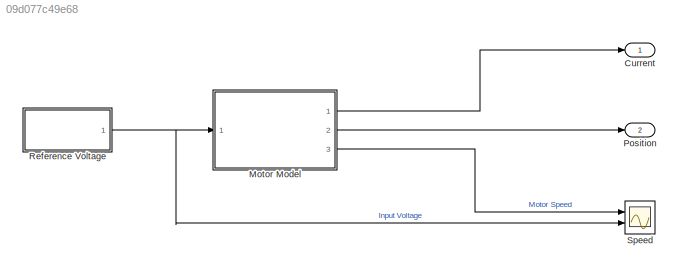
MODEL slx_09d077c49e68
KIND model
CONFIG AbsTol = auto
CONFIG EnableMultiTasking = off
CONFIG FixedStep = auto
CONFIG MaxStep = auto
CONFIG MinStep = auto
CONFIG RelTol = 1e-3
CONFIG SampleTimeConstraint = Unconstrained
CONFIG Solver = VariableStepAuto
CONFIG SolverName = VariableStepAuto
CONFIG StartTime = 0.0
CONFIG StopTime = 10.0
BLOCK [Outport] Current
  IconDisplay = Port number
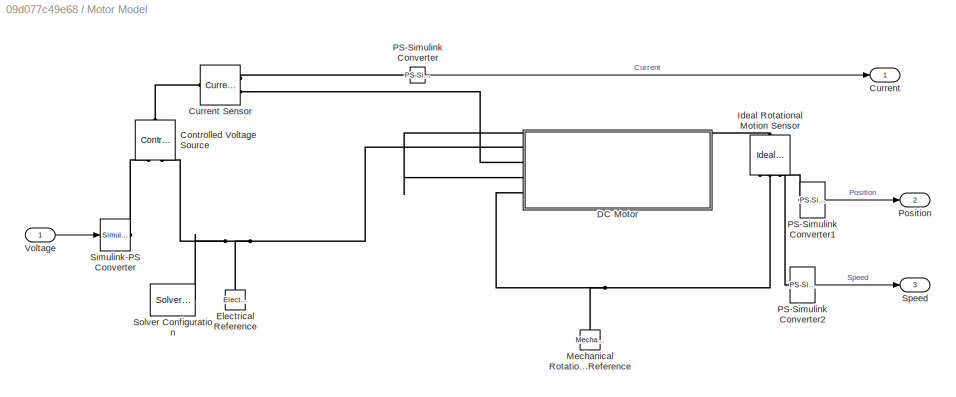
BLOCK [SubSystem] Motor Model
  Ports = [1, 3]
  RequestExecContextInheritance = off
BLOCK [Reference] Motor Model/Controlled Voltage Source  REF=fl_lib/Electrical/Electrical Sources/Controlled Voltage
Source
  Ports = [0, 0, 0, 0, 0, 1, 2]
  SourceBlock = fl_lib/Electrical/Electrical Sources/Controlled Voltage\nSource
  SourceProductBaseCode = SS
  SourceProductName = Simscape
  SourceType = Controlled Voltage\nSource
BLOCK [Outport] Motor Model/Current
  IconDisplay = Port number
BLOCK [Reference] Motor Model/Current Sensor  REF=fl_lib/Electrical/Electrical Sensors/Current Sensor
  Ports = [0, 0, 0, 0, 0, 1, 2]
  SourceBlock = fl_lib/Electrical/Electrical Sensors/Current Sensor
  SourceProductBaseCode = SS
  SourceProductName = Simscape
  SourceType = Current Sensor
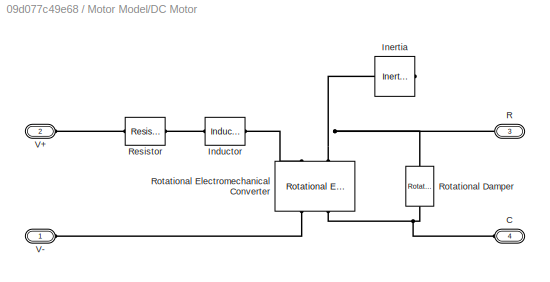
BLOCK [SubSystem] Motor Model/DC Motor
  Ports = [0, 0, 0, 0, 0, 4]
  RequestExecContextInheritance = off
BLOCK [PMIOPort] Motor Model/DC Motor/C
  Port = 4
  Side = Left
BLOCK [Reference] Motor Model/DC Motor/Inductor  REF=fl_lib/Electrical/Electrical Elements/Inductor
  Ports = [0, 0, 0, 0, 0, 1, 1]
  SourceBlock = fl_lib/Electrical/Electrical Elements/Inductor
  SourceProductBaseCode = SS
  SourceProductName = Simscape
  SourceType = Inductor
BLOCK [Reference] Motor Model/DC Motor/Inertia  REF=fl_lib/Mechanical/Rotational Elements/Inertia
  Ports = [0, 0, 0, 0, 0, 1]
  SourceBlock = fl_lib/Mechanical/Rotational Elements/Inertia
  SourceProductBaseCode = SS
  SourceProductName = Simscape
  SourceType = Inertia
BLOCK [PMIOPort] Motor Model/DC Motor/R
  Port = 3
  Side = Left
BLOCK [Reference] Motor Model/DC Motor/Resistor  REF=fl_lib/Electrical/Electrical Elements/Resistor
  Ports = [0, 0, 0, 0, 0, 1, 1]
  SourceBlock = fl_lib/Electrical/Electrical Elements/Resistor
  SourceProductBaseCode = SS
  SourceProductName = Simscape
  SourceType = Resistor
BLOCK [Reference] Motor Model/DC Motor/Rotational Damper  REF=fl_lib/Mechanical/Rotational Elements/Rotational Damper
  Ports = [0, 0, 0, 0, 0, 1, 1]
  SourceBlock = fl_lib/Mechanical/Rotational Elements/Rotational Damper
  SourceProductBaseCode = SS
  SourceProductName = Simscape
  SourceType = Rotational Damper
BLOCK [Reference] Motor Model/DC Motor/Rotational Electromechanical Converter  REF=fl_lib/Electrical/Electrical Elements/Rotational
Electromechanical
Converter
  Ports = [0, 0, 0, 0, 0, 2, 2]
  SourceBlock = fl_lib/Electrical/Electrical Elements/Rotational\nElectromechanical\nConverter
  SourceProductBaseCode = SS
  SourceProductName = Simscape
  SourceType = Rotational\nElectromechanical\nConverter
BLOCK [PMIOPort] Motor Model/DC Motor/V+
  Port = 2
  Side = Left
BLOCK [PMIOPort] Motor Model/DC Motor/V-
  Side = Left
BLOCK [Reference] Motor Model/Electrical Reference  REF=fl_lib/Electrical/Electrical Elements/Electrical Reference
  Ports = [0, 0, 0, 0, 0, 1]
  SourceBlock = fl_lib/Electrical/Electrical Elements/Electrical Reference
  SourceProductBaseCode = SS
  SourceProductName = Simscape
  SourceType = Electrical Reference
BLOCK [Reference] Motor Model/Ideal Rotational Motion Sensor  REF=fl_lib/Mechanical/Mechanical Sensors/Ideal Rotational
Motion Sensor
  Ports = [0, 0, 0, 0, 0, 1, 3]
  SourceBlock = fl_lib/Mechanical/Mechanical Sensors/Ideal Rotational\nMotion Sensor
  SourceProductBaseCode = SS
  SourceProductName = Simscape
  SourceType = Ideal Rotational\nMotion Sensor
BLOCK [Reference] Motor Model/Mechanical Rotational Reference  REF=fl_lib/Mechanical/Rotational Elements/Mechanical
Rotational Reference
  Ports = [0, 0, 0, 0, 0, 1]
  SourceBlock = fl_lib/Mechanical/Rotational Elements/Mechanical\nRotational Reference
  SourceProductBaseCode = SS
  SourceProductName = Simscape
  SourceType = Mechanical\nRotational Reference
BLOCK [Reference] Motor Model/PS-Simulink Converter  REF=nesl_utility/PS-Simulink
Converter
  Ports = [0, 1, 0, 0, 0, 1]
  SourceBlock = nesl_utility/PS-Simulink\nConverter
  SourceProductBaseCode = SS
  SourceProductName = Simscape
  SourceType = PS-Simulink\nConverter
BLOCK [Reference] Motor Model/PS-Simulink Converter1  REF=nesl_utility/PS-Simulink
Converter
  Ports = [0, 1, 0, 0, 0, 1]
  SourceBlock = nesl_utility/PS-Simulink\nConverter
  SourceProductBaseCode = SS
  SourceProductName = Simscape
  SourceType = PS-Simulink\nConverter
BLOCK [Reference] Motor Model/PS-Simulink Converter2  REF=nesl_utility/PS-Simulink
Converter
  Ports = [0, 1, 0, 0, 0, 1]
  SourceBlock = nesl_utility/PS-Simulink\nConverter
  SourceProductBaseCode = SS
  SourceProductName = Simscape
  SourceType = PS-Simulink\nConverter
BLOCK [Outport] Motor Model/Position
  IconDisplay = Port number
  Port = 2
BLOCK [Reference] Motor Model/Simulink-PS Converter  REF=nesl_utility/Simulink-PS
Converter
  Ports = [1, 0, 0, 0, 0, 0, 1]
  SourceBlock = nesl_utility/Simulink-PS\nConverter
  SourceProductBaseCode = SS
  SourceProductName = Simscape
  SourceType = Simulink-PS\nConverter
BLOCK [Reference] Motor Model/Solver Configuration  REF=nesl_utility/Solver
Configuration
  Ports = [0, 0, 0, 0, 0, 0, 1]
  SourceBlock = nesl_utility/Solver\nConfiguration
  SourceProductBaseCode = SS
  SourceProductName = Simscape
  SourceType = Solver\nConfiguration
BLOCK [Outport] Motor Model/Speed
  IconDisplay = Port number
  Port = 3
BLOCK [Inport] Motor Model/Voltage
  IconDisplay = Port number
BLOCK [Outport] Position
  IconDisplay = Port number
  Port = 2
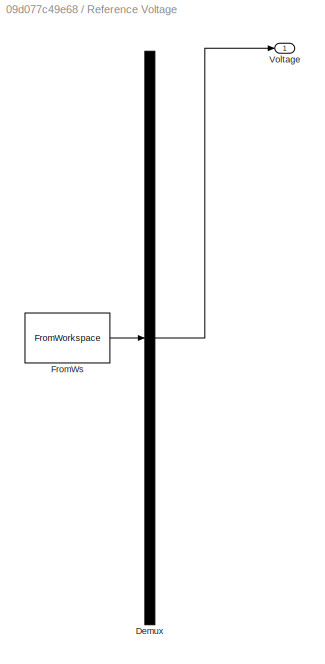
BLOCK [SubSystem] Reference Voltage
  ClipboardFcn = sigbuilder_block('clipboard');
  CloseFcn = sigbuilder_block('close');
  ContinueFcn = sigbuilder_block('continue')
  CopyFcn = sigbuilder_block('copy');
  DeleteFcn = sigbuilder_block('delete');
  LoadFcn = sigbuilder_block('load');
  MaskHideContents = on
  ModelCloseFcn = sigbuilder_block('modelClose');
  NameChangeFcn = sigbuilder_block('namechange');
  OpenFcn = sigbuilder_block('open',[352.5 435 402 361.5 ]);
  PauseFcn = sigbuilder_block('pause')
  Ports = [0, 1]
  PreSaveFcn = sigbuilder_block('preSave');
  RequestExecContextInheritance = off
  StartFcn = sigbuilder_block('start');
  StopFcn = sigbuilder_block('stop');
  Tag = STV Subsys
BLOCK [Demux] Reference Voltage/Demux
  Outputs = 1
  Ports = [1, 1]
  Tag = STV Demux
BLOCK [FromWorkspace] Reference Voltage/FromWs
  SampleTime = 1/100
  Tag = STV FromWs
  VariableName = tuvar
  ZeroCross = on
BLOCK [Outport] Reference Voltage/Voltage
  IconDisplay = Port number
  Tag = STV Outport
BLOCK [Scope] Speed
  Floating = off
  NumInputPorts = 2
  Ports = [2]
  ScopeSpecificationString = Simulink.scopes.TimeScopeBlockCfg('CurrentConfiguration', extmgr.ConfigurationSet(extmgr.Configuration('Core','General UI',true),extmgr.Configuration('Core','Source UI',true),extmgr.Configuration('Sources','WiredSimulink',true),extmgr.Configuration('Visuals','Time Domain',true,'SerializedDisplays',{struct('MinYLimReal','-3.75','MaxYLimReal','3.75','YLabelReal','','MinYLimMag','0.00000','MaxYLimMag...<+1432ch>
LINE Motor Model/PS-Simulink Converter1:1 -> Motor Model/Position:1
LINE Motor Model/PS-Simulink Converter2:1 -> Motor Model/Speed:1
LINE Motor Model/PS-Simulink Converter:1 -> Motor Model/Current:1
LINE Motor Model/Voltage:1 -> Motor Model/Simulink-PS Converter:1
LINE Motor Model:1 -> Current:1
LINE Motor Model:2 -> Position:1
LINE Motor Model:3 -> Speed:1
NET Reference Voltage:1 -> Motor Model:1, Speed:2
PLINE Motor Model/Controlled Voltage Source:LConn1 -- Motor Model/Current Sensor:LConn1
PLINE Motor Model/Controlled Voltage Source:RConn1 -- Motor Model/Simulink-PS Converter:RConn1
PNET net1: Motor Model/Controlled Voltage Source:RConn2 -- Motor Model/DC Motor:LConn1 -- Motor Model/Electrical Reference:LConn1 -- Motor Model/Solver Configuration:RConn1
PLINE Motor Model/Current Sensor:RConn1 -- Motor Model/PS-Simulink Converter:LConn1
PLINE Motor Model/Current Sensor:RConn2 -- Motor Model/DC Motor:LConn2
PNET net2: Motor Model/DC Motor/C:RConn1 -- Motor Model/DC Motor/Rotational Damper:LConn1 -- Motor Model/DC Motor/Rotational Electromechanical Converter:RConn2
PLINE Motor Model/DC Motor/Inductor:LConn1 -- Motor Model/DC Motor/Resistor:RConn1
PLINE Motor Model/DC Motor/Inductor:RConn1 -- Motor Model/DC Motor/Rotational Electromechanical Converter:LConn1
PNET net3: Motor Model/DC Motor/Inertia:LConn1 -- Motor Model/DC Motor/R:RConn1 -- Motor Model/DC Motor/Rotational Damper:RConn1 -- Motor Model/DC Motor/Rotational Electromechanical Converter:LConn2
PLINE Motor Model/DC Motor/Resistor:LConn1 -- Motor Model/DC Motor/V+:RConn1
PLINE Motor Model/DC Motor/Rotational Electromechanical Converter:RConn1 -- Motor Model/DC Motor/V-:RConn1
PLINE Motor Model/DC Motor:LConn3 -- Motor Model/Ideal Rotational Motion Sensor:LConn1
PNET net4: Motor Model/DC Motor:LConn4 -- Motor Model/Ideal Rotational Motion Sensor:RConn1 -- Motor Model/Mechanical Rotational Reference:LConn1
PLINE Motor Model/Ideal Rotational Motion Sensor:RConn2 -- Motor Model/PS-Simulink Converter2:LConn1
PLINE Motor Model/Ideal Rotational Motion Sensor:RConn3 -- Motor Model/PS-Simulink Converter1:LConn1
note: NET lines group one-source signal fan-out (src -> all destinations, sorted); 1:1 wires keep LINE; PNET lines group multi-terminal physical nets as a canonical sorted terminal list (undirected conserving connections); 2-terminal nets keep the pairwise PLINE form
